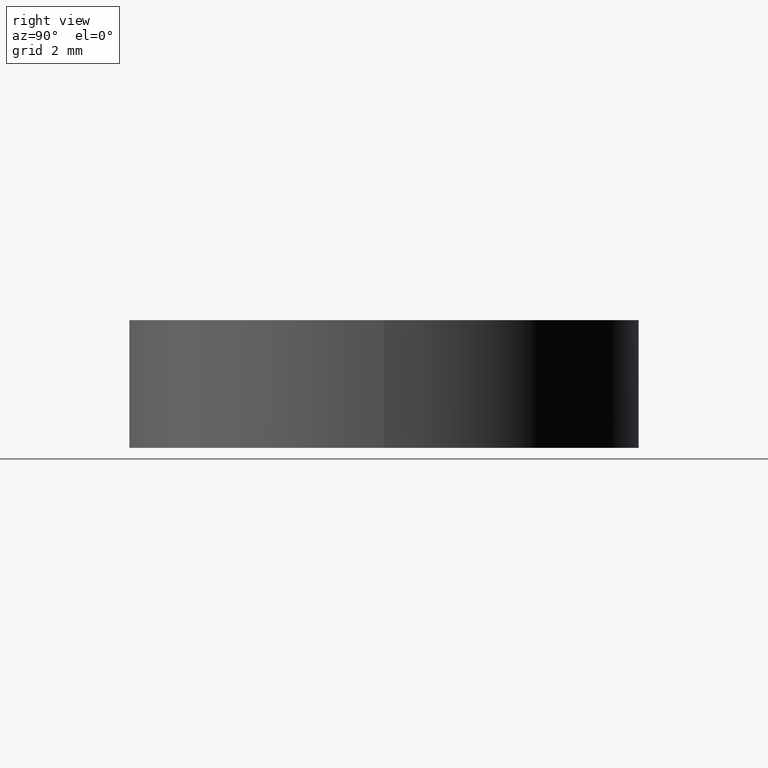
[diagram: clean part render]
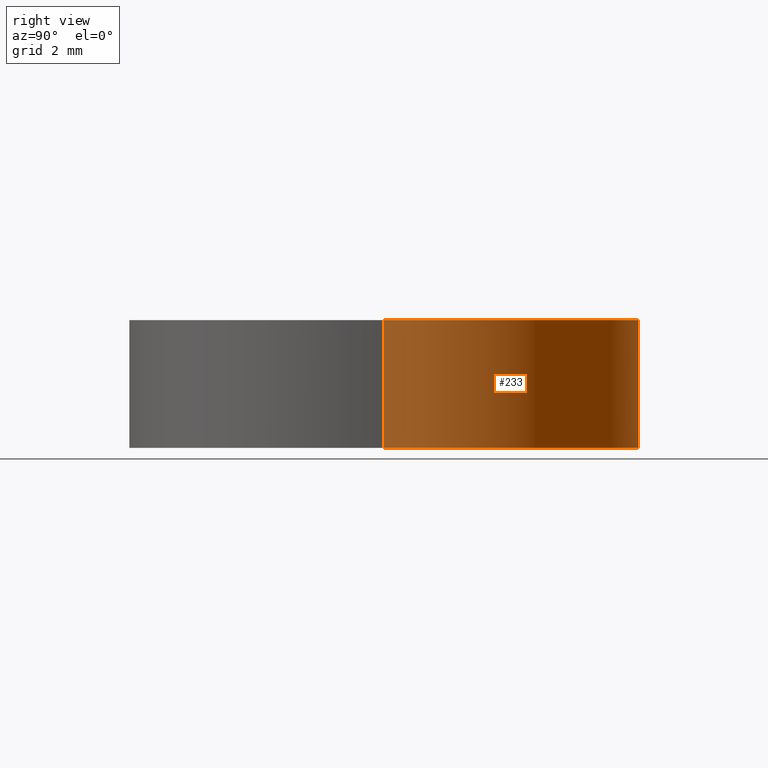
[diagram: same view with one face highlighted and labeled with its STEP entity id]
A machine part, right view. The second image highlights one B-rep face of the part: STEP entity #233.
In plain terms, the highlighted cylindrical surface (partial cylindrical patch) has radius 6.35 mm, axis along (0, 0, 1).
Its self-contained STEP definition (entity closure, byte-faithful):
#7 = VECTOR ( 'NONE', #160, 1000.000000000000000 ) ;
#14 = DIRECTION ( 'NONE',  ( 1.000000000000000000, 0.0000000000000000000, 0.0000000000000000000 ) ) ;
#17 = CARTESIAN_POINT ( 'NONE',  ( -6.349999999999999600, 1.998896044546239400E-015, 2.993666058263550100 ) ) ;
#24 = VERTEX_POINT ( 'NONE', #59 ) ;
#27 = CARTESIAN_POINT ( 'NONE',  ( -6.349999999999999600, 1.998896044546239400E-015, -0.1936660582635470200 ) ) ;
#29 = LINE ( 'NONE', #175, #7 ) ;
#30 = CARTESIAN_POINT ( 'NONE',  ( 6.349999999999999600, 1.221245327087670000E-015, -0.1936660582635470200 ) ) ;
#34 = DIRECTION ( 'NONE',  ( 1.000000000000000000, 0.0000000000000000000, 0.0000000000000000000 ) ) ;
#35 = ORIENTED_EDGE ( 'NONE', *, *, #286, .F. ) ;
#37 = ORIENTED_EDGE ( 'NONE', *, *, #104, .T. ) ;
#42 = CARTESIAN_POINT ( 'NONE',  ( 6.349999999999999600, 1.221245327087670000E-015, 2.993666058263550100 ) ) ;
#44 = DIRECTION ( 'NONE',  ( 0.0000000000000000000, 0.0000000000000000000, 1.000000000000000000 ) ) ;
#51 = EDGE_CURVE ( 'NONE', #203, #24, #212, .T. ) ;
#53 = CIRCLE ( 'NONE', #119, 6.349999999999999600 ) ;
#55 = ORIENTED_EDGE ( 'NONE', *, *, #62, .T. ) ;
#57 = CIRCLE ( 'NONE', #222, 6.349999999999999600 ) ;
#59 = CARTESIAN_POINT ( 'NONE',  ( -4.352487738278875200E-014, 6.349999999999939200, -0.1936660582635444400 ) ) ;
#62 = EDGE_CURVE ( 'NONE', #24, #243, #53, .T. ) ;
#69 = CARTESIAN_POINT ( 'NONE',  ( 6.349999999999999600, 1.221245327087670000E-015, -0.1936660582635470200 ) ) ;
#73 = DIRECTION ( 'NONE',  ( -0.0000000000000000000, -0.0000000000000000000, -1.000000000000000000 ) ) ;
#78 = ORIENTED_EDGE ( 'NONE', *, *, #51, .T. ) ;
#95 = VERTEX_POINT ( 'NONE', #17 ) ;
#99 = CARTESIAN_POINT ( 'NONE',  ( 4.352487738278875200E-014, 6.350000000000076000, 2.993666058263544400 ) ) ;
#104 = EDGE_CURVE ( 'NONE', #248, #191, #57, .T. ) ;
#113 = CARTESIAN_POINT ( 'NONE',  ( 2.498001805406600200E-016, 1.221245327087670000E-015, 2.993666058263550100 ) ) ;
#119 = AXIS2_PLACEMENT_3D ( 'NONE', #151, #251, #14 ) ;
#124 = ORIENTED_EDGE ( 'NONE', *, *, #211, .T. ) ;
#130 = DIRECTION ( 'NONE',  ( -0.0000000000000000000, -0.0000000000000000000, -1.000000000000000000 ) ) ;
#147 = DIRECTION ( 'NONE',  ( 0.0000000000000000000, 0.0000000000000000000, 1.000000000000000000 ) ) ;
#151 = CARTESIAN_POINT ( 'NONE',  ( 2.498001805406600200E-016, 1.221245327087670000E-015, -0.1936660582635470200 ) ) ;
#156 = DIRECTION ( 'NONE',  ( 1.000000000000000000, 1.776356839400250500E-015, 0.0000000000000000000 ) ) ;
#159 = ORIENTED_EDGE ( 'NONE', *, *, #187, .T. ) ;
#160 = DIRECTION ( 'NONE',  ( 0.0000000000000000000, 0.0000000000000000000, 1.000000000000000000 ) ) ;
#165 = DIRECTION ( 'NONE',  ( 1.000000000000000000, -8.881784197001252300E-016, 0.0000000000000000000 ) ) ;
#173 = AXIS2_PLACEMENT_3D ( 'NONE', #223, #147, #34 ) ;
#175 = CARTESIAN_POINT ( 'NONE',  ( -6.349999999999999600, 1.998896044546239400E-015, -0.1936660582635470200 ) ) ;
#179 = AXIS2_PLACEMENT_3D ( 'NONE', #113, #73, #165 ) ;
#187 = EDGE_CURVE ( 'NONE', #243, #95, #29, .T. ) ;
#191 = VERTEX_POINT ( 'NONE', #42 ) ;
#193 = FACE_OUTER_BOUND ( 'NONE', #198, .T. ) ;
#198 = EDGE_LOOP ( 'NONE', ( #78, #55, #159, #124, #37, #35 ) ) ;
#202 = CIRCLE ( 'NONE', #179, 6.349999999999999600 ) ;
#203 = VERTEX_POINT ( 'NONE', #69 ) ;
#207 = CARTESIAN_POINT ( 'NONE',  ( 2.498001805406600200E-016, 1.221245327087670000E-015, -0.1936660582635470200 ) ) ;
#211 = EDGE_CURVE ( 'NONE', #95, #248, #202, .T. ) ;
#212 = CIRCLE ( 'NONE', #173, 6.349999999999999600 ) ;
#222 = AXIS2_PLACEMENT_3D ( 'NONE', #280, #130, #156 ) ;
#223 = CARTESIAN_POINT ( 'NONE',  ( 2.498001805406600200E-016, 1.221245327087670000E-015, -0.1936660582635470200 ) ) ;
#231 = AXIS2_PLACEMENT_3D ( 'NONE', #207, #44, #238 ) ;
#233 = ADVANCED_FACE ( 'NONE', ( #193 ), #291, .T. ) ;
#238 = DIRECTION ( 'NONE',  ( 1.000000000000000000, 0.0000000000000000000, 0.0000000000000000000 ) ) ;
#243 = VERTEX_POINT ( 'NONE', #27 ) ;
#248 = VERTEX_POINT ( 'NONE', #99 ) ;
#251 = DIRECTION ( 'NONE',  ( 0.0000000000000000000, 0.0000000000000000000, 1.000000000000000000 ) ) ;
#261 = DIRECTION ( 'NONE',  ( 0.0000000000000000000, 0.0000000000000000000, 1.000000000000000000 ) ) ;
#266 = VECTOR ( 'NONE', #261, 1000.000000000000000 ) ;
#274 = LINE ( 'NONE', #30, #266 ) ;
#280 = CARTESIAN_POINT ( 'NONE',  ( 2.498001805406600200E-016, 1.221245327087670000E-015, 2.993666058263550100 ) ) ;
#286 = EDGE_CURVE ( 'NONE', #203, #191, #274, .T. ) ;
#291 = CYLINDRICAL_SURFACE ( 'NONE', #231, 6.349999999999999600 ) ;